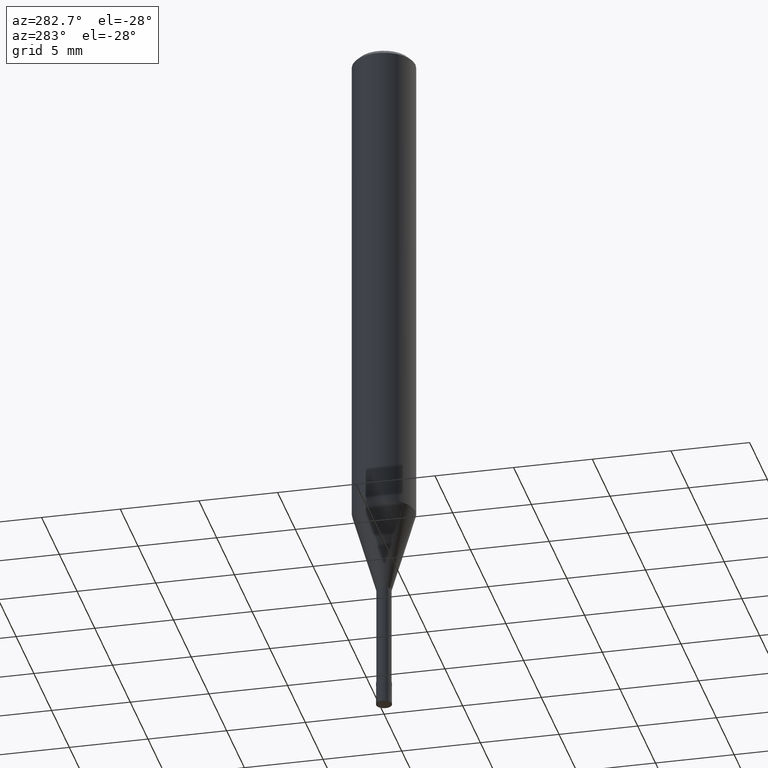
[diagram: clean part render]
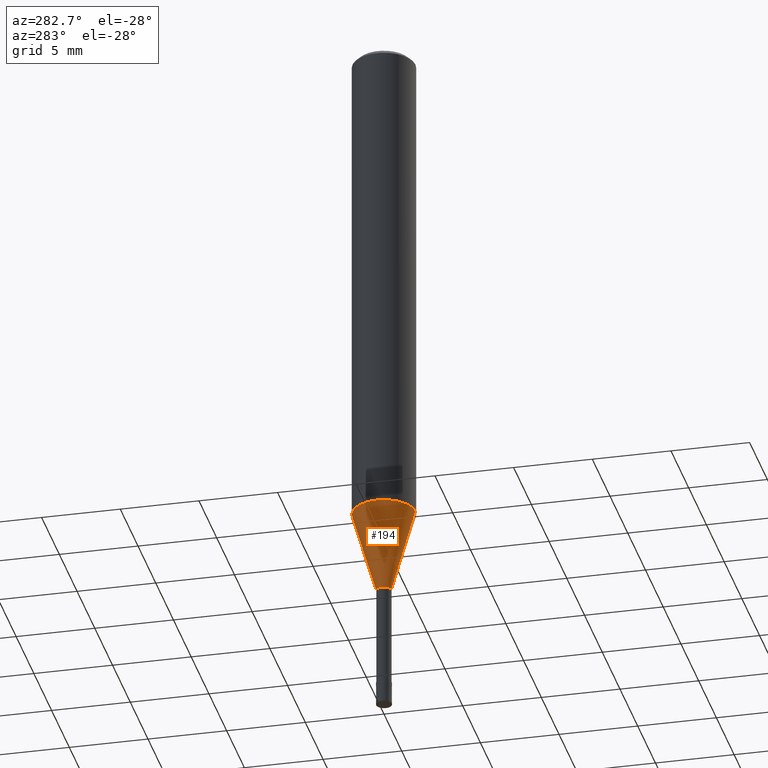
[diagram: same view with one face highlighted and labeled with its STEP entity id]
A machine part, auxiliary view. The second image highlights one B-rep face of the part: STEP entity #194.
In plain terms, the highlighted conical surface has half-angle 16.001 deg.
Its self-contained STEP definition (entity closure, byte-faithful):
#104=EDGE_CURVE('',#140,#144,#243,.T.);
#110=EDGE_CURVE('',#188,#114,#249,.T.);
#114=VERTEX_POINT('',#254);
#140=VERTEX_POINT('',#283);
#144=VERTEX_POINT('',#287);
#152=EDGE_CURVE('',#114,#144,#295,.T.);
#188=VERTEX_POINT('',#336);
#194=ADVANCED_FACE('',(#343),#344,.T.);
#200=EDGE_CURVE('',#140,#188,#350,.T.);
#243=CIRCLE('',#394,0.47495);
#249=CIRCLE('',#402,1.99995);
#254=CARTESIAN_POINT('',(0.0,1.99995,-31.682));
#283=CARTESIAN_POINT('',(5.81626787747938E-017,-0.47495,-37.0));
#287=CARTESIAN_POINT('',(0.0,0.47495,-37.0));
#295=LINE('',#460,#461);
#336=CARTESIAN_POINT('',(2.44915147732706E-016,-1.99995,-31.682));
#343=FACE_OUTER_BOUND('',#520,.T.);
#344=CONICAL_SURFACE('',#521,1.23745,0.279267977304115);
#350=LINE('',#527,#528);
#394=AXIS2_PLACEMENT_3D('',#561,#562,#563);
#402=AXIS2_PLACEMENT_3D('',#566,#567,#568);
#460=CARTESIAN_POINT('',(-1.5153891325375E-016,1.23745,-34.341));
#461=VECTOR('',#622,1.0);
#520=EDGE_LOOP('',(#686,#687,#688,#689));
#521=AXIS2_PLACEMENT_3D('',#690,#691,#692);
#527=CARTESIAN_POINT('',(1.5153891325375E-016,-1.23745,-34.341));
#528=VECTOR('',#694,1.0);
#561=CARTESIAN_POINT('',(0.0,0.0,-37.0));
#562=DIRECTION('',(0.0,0.0,-1.0));
#563=DIRECTION('',(0.0,1.0,0.0));
#566=CARTESIAN_POINT('',(0.0,0.0,-31.682));
#567=DIRECTION('',(0.0,0.0,-1.0));
#568=DIRECTION('',(0.0,1.0,0.0));
#622=DIRECTION('',(3.37565264353533E-017,-0.275652060190515,-0.961257479405349));
#686=ORIENTED_EDGE('',*,*,#152,.T.);
#687=ORIENTED_EDGE('',*,*,#104,.F.);
#688=ORIENTED_EDGE('',*,*,#200,.T.);
#689=ORIENTED_EDGE('',*,*,#110,.T.);
#690=CARTESIAN_POINT('',(0.0,0.0,-34.341));
#691=DIRECTION('',(-0.0,-0.0,1.0));
#692=DIRECTION('',(0.0,1.0,0.0));
#694=DIRECTION('',(3.37565264353533E-017,-0.275652060190515,0.961257479405349));